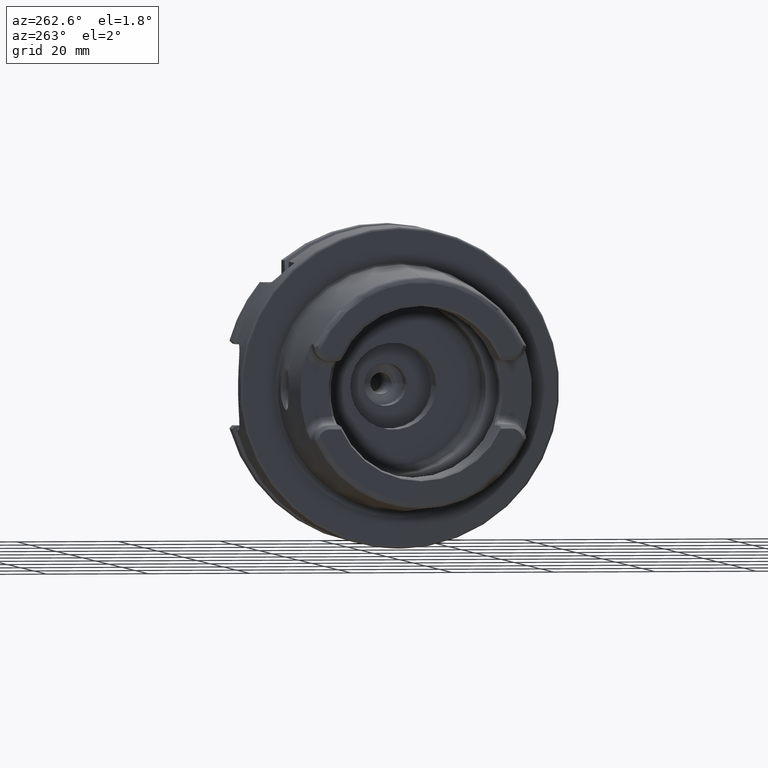
[diagram: clean part render]
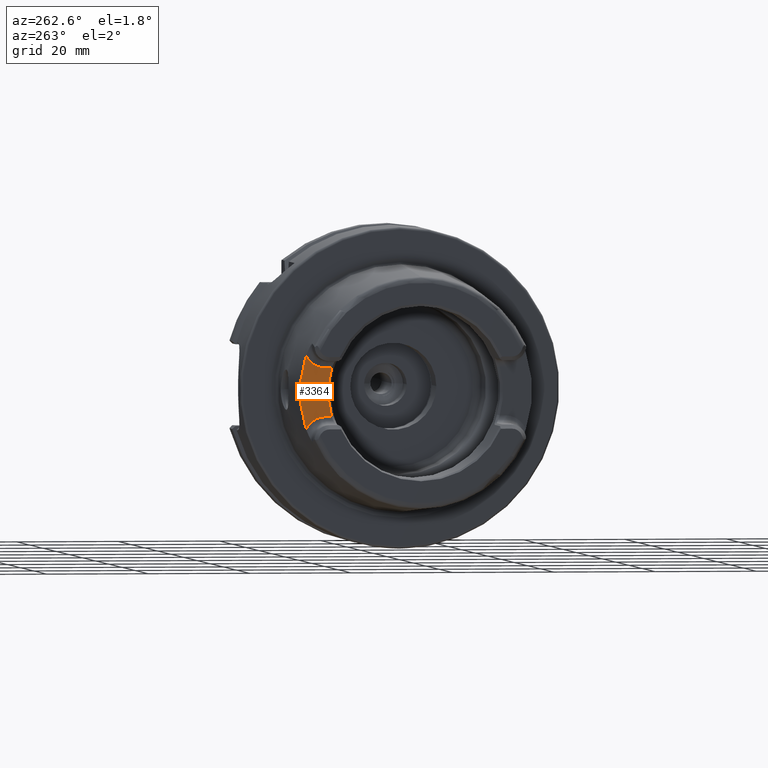
[diagram: same view with one face highlighted and labeled with its STEP entity id]
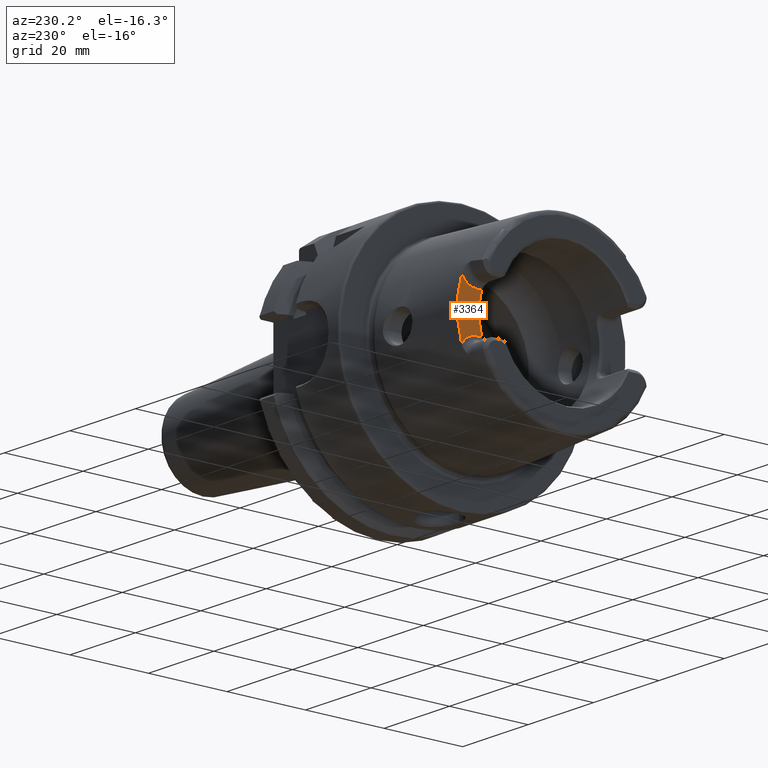
[diagram: same view with one face highlighted and labeled with its STEP entity id]
A machine part, auxiliary view. The second image highlights one B-rep face of the part: STEP entity #3364.
A second angle (auxiliary view) of the same face is appended — the face is thin or edge-on in the first view.
In plain terms, the highlighted planar face has unit normal (1, 0, 0).
Its self-contained STEP definition (entity closure, byte-faithful):
#159=CARTESIAN_POINT('',(-2.6E1,1.278976924368E-13,3.108624468950E-14));
#160=DIRECTION('',(-1.E0,0.E0,0.E0));
#161=DIRECTION('',(0.E0,9.621355498715E-1,2.725714285714E-1));
#162=AXIS2_PLACEMENT_3D('',#159,#160,#161);
#164=DIRECTION('',(4.609939772725E-10,-1.E0,-3.534412479167E-8));
#165=VECTOR('',#164,1.152627891337E0);
#166=CARTESIAN_POINT('',(-2.6E1,1.798999999757E1,-4.770000000624E0));
#167=LINE('',#166,#165);
#168=CARTESIAN_POINT('',(-2.6E1,1.799E1,-9.15E0));
#169=DIRECTION('',(1.E0,0.E0,0.E0));
#170=DIRECTION('',(0.E0,8.886396342024E-1,4.586061496804E-1));
#171=AXIS2_PLACEMENT_3D('',#168,#169,#170);
#173=CARTESIAN_POINT('',(-2.6E1,0.E0,0.E0));
#174=DIRECTION('',(1.E0,0.E0,0.E0));
#175=DIRECTION('',(0.E0,9.506556522061E-1,-3.102480151887E-1));
#176=AXIS2_PLACEMENT_3D('',#173,#174,#175);
#178=CARTESIAN_POINT('',(-2.6E1,1.799E1,9.15E0));
#179=DIRECTION('',(-1.E0,0.E0,0.E0));
#180=DIRECTION('',(0.E0,8.886396342024E-1,-4.586061496804E-1));
#181=AXIS2_PLACEMENT_3D('',#178,#179,#180);
#183=DIRECTION('',(2.764983725738E-10,-1.E0,8.715189805244E-9));
#184=VECTOR('',#183,1.152627880967E0);
#185=CARTESIAN_POINT('',(-2.6E1,1.798999999883E1,4.770000000281E0));
#186=LINE('',#185,#184);
#2700=CARTESIAN_POINT('',(-2.599999999947E1,1.683737210624E1,
-4.770000041362E0));
#2908=CARTESIAN_POINT('',(-2.6E1,2.188224159781E1,-7.141305064400E0));
#2909=CARTESIAN_POINT('',(-2.6E1,1.799E1,-4.77E0));
#2910=VERTEX_POINT('',#2908);
#2911=VERTEX_POINT('',#2909);
#2920=CARTESIAN_POINT('',(-2.6E1,2.188224159781E1,7.141305064400E0));
#2921=CARTESIAN_POINT('',(-2.6E1,1.799E1,4.77E0));
#2922=VERTEX_POINT('',#2920);
#2923=VERTEX_POINT('',#2921);
#2926=VERTEX_POINT('',#2700);
#2930=CARTESIAN_POINT('',(-2.6E1,1.683737212275E1,4.77E0));
#2931=VERTEX_POINT('',#2930);
#3347=CARTESIAN_POINT('',(-2.6E1,0.E0,6.27E0));
#3348=DIRECTION('',(1.E0,0.E0,0.E0));
#3349=DIRECTION('',(0.E0,0.E0,-1.E0));
#3350=AXIS2_PLACEMENT_3D('',#3347,#3348,#3349);
#3351=PLANE('',#3350);
#3353=ORIENTED_EDGE('',*,*,#3352,.T.);
#3355=ORIENTED_EDGE('',*,*,#3354,.F.);
#3356=ORIENTED_EDGE('',*,*,#3338,.F.);
#3357=ORIENTED_EDGE('',*,*,#3236,.T.);
#3359=ORIENTED_EDGE('',*,*,#3358,.T.);
#3361=ORIENTED_EDGE('',*,*,#3360,.T.);
#3362=EDGE_LOOP('',(#3353,#3355,#3356,#3357,#3359,#3361));
#3363=FACE_OUTER_BOUND('',#3362,.F.);
#3364=ADVANCED_FACE('',(#3363),#3351,.F.);
#163=CIRCLE('',#162,1.75E1);
#172=CIRCLE('',#171,4.38E0);
#177=CIRCLE('',#176,2.301805237998E1);
#182=CIRCLE('',#181,4.38E0);
#3236=EDGE_CURVE('',#2910,#2922,#177,.T.);
#3338=EDGE_CURVE('',#2910,#2911,#172,.T.);
#3352=EDGE_CURVE('',#2931,#2926,#163,.T.);
#3354=EDGE_CURVE('',#2911,#2926,#167,.T.);
#3358=EDGE_CURVE('',#2922,#2923,#182,.T.);
#3360=EDGE_CURVE('',#2923,#2931,#186,.T.);